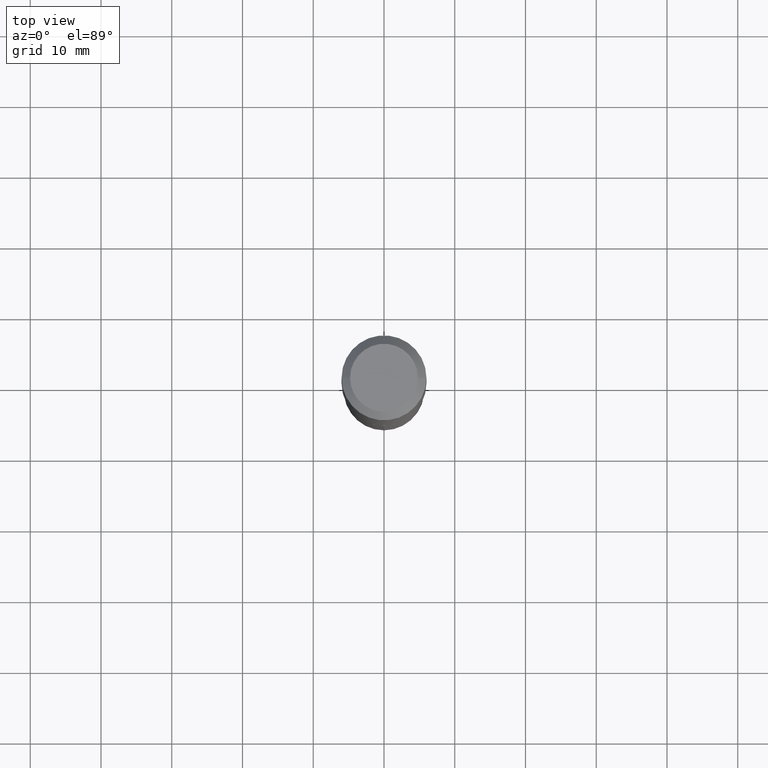
[diagram: clean part render]
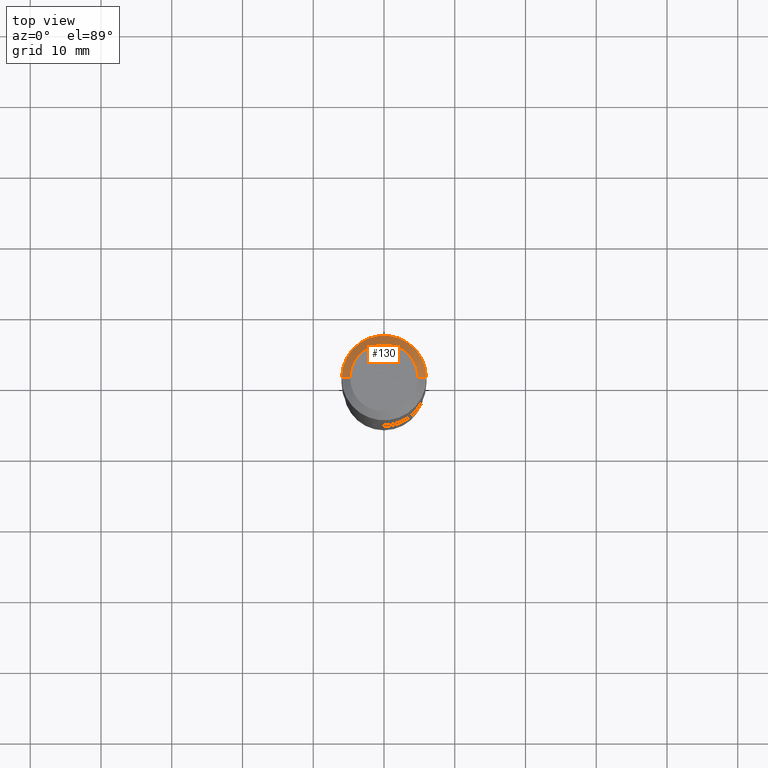
[diagram: same view with one face highlighted and labeled with its STEP entity id]
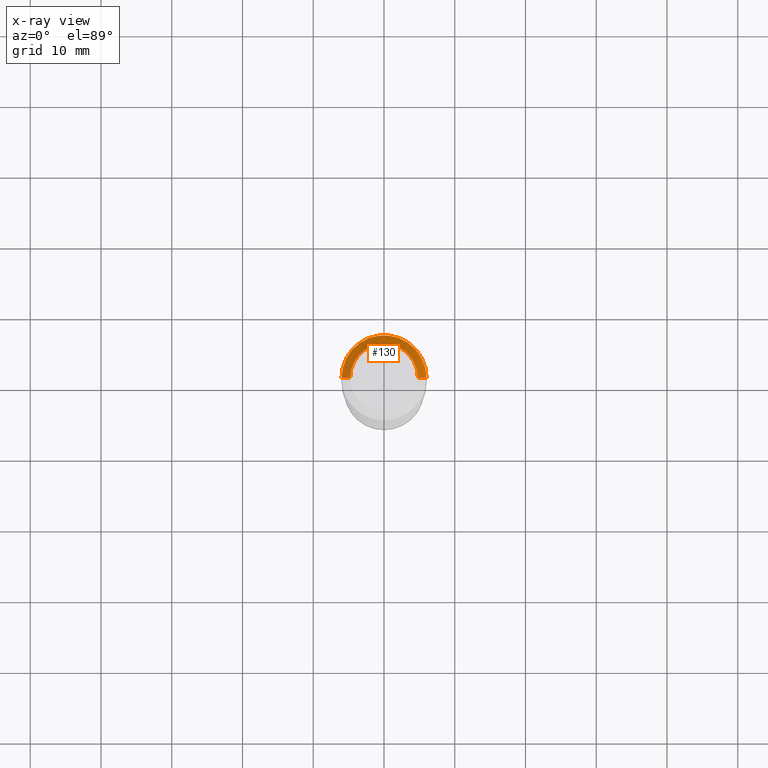
[diagram: x-ray of the same camera — body ghosted, the highlighted face saturated]
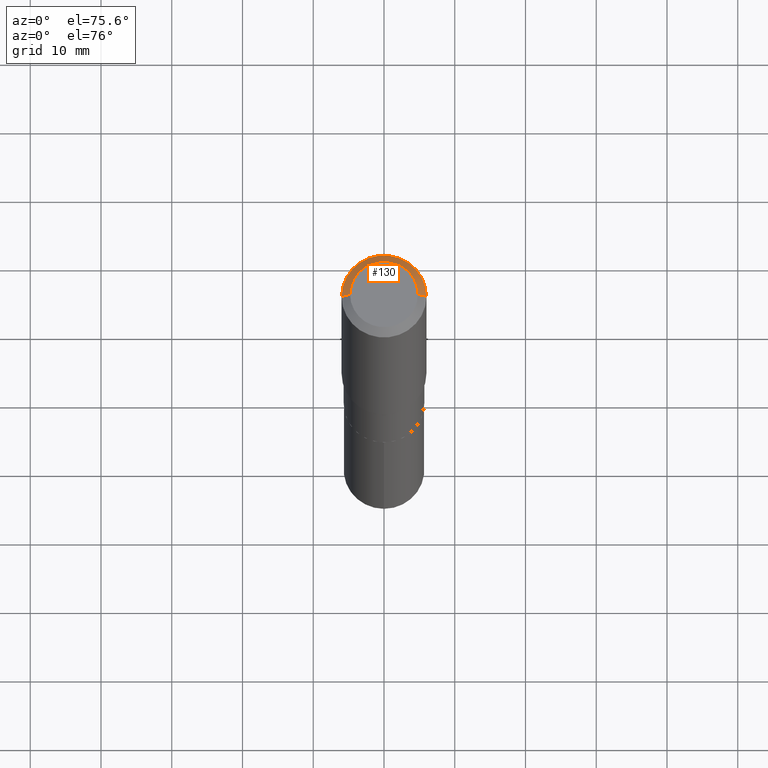
[diagram: same view with one face highlighted and labeled with its STEP entity id]
A machine part, top view. The second image highlights one B-rep face of the part: STEP entity #130.
The next image is the same camera in x-ray: the body ghosted, the highlighted face saturated — about 0% of this face is hidden behind the body in this view.
A second angle (auxiliary view) of the same face is appended — the face is thin or edge-on in the first view.
In plain terms, the highlighted conical surface has half-angle 45 deg.
Its self-contained STEP definition (entity closure, byte-faithful):
#31 = EDGE_LOOP ( 'NONE', ( #56, #318, #359, #356 ) ) ;
#41 = AXIS2_PLACEMENT_3D ( 'NONE', #441, #211, #110 ) ;
#51 = CONICAL_SURFACE ( 'NONE', #322, 0.2361999999999999933, 0.7853981633974452814 ) ;
#55 = CARTESIAN_POINT ( 'NONE',  ( -0.2361999999999999933, -1.496222721037607866E-15, -0.04724000000000028177 ) ) ;
#56 = ORIENTED_EDGE ( 'NONE', *, *, #487, .F. ) ;
#85 = CARTESIAN_POINT ( 'NONE',  ( 0.2361999999999999933, -1.814313362916447440E-15, -0.04724000000000028177 ) ) ;
#102 = LINE ( 'NONE', #473, #390 ) ;
#110 = DIRECTION ( 'NONE',  ( 1.000000000000000000, -6.982962677686266711E-15, 0.000000000000000000 ) ) ;
#130 = ADVANCED_FACE ( 'NONE', ( #256 ), #51, .T. ) ;
#138 = DIRECTION ( 'NONE',  ( 0.7071067811865453523, -7.319954787623248157E-15, -0.7071067811865496822 ) ) ;
#150 = DIRECTION ( 'NONE',  ( -2.445468806185136597E-29, 3.491481338843145583E-15, 1.000000000000000000 ) ) ;
#153 = AXIS2_PLACEMENT_3D ( 'NONE', #298, #150, #300 ) ;
#175 = DIRECTION ( 'NONE',  ( -0.7071067811865453523, 2.468850131082234184E-15, -0.7071067811865496822 ) ) ;
#177 = VERTEX_POINT ( 'NONE', #55 ) ;
#205 = VECTOR ( 'NONE', #175, 39.37007874015748143 ) ;
#211 = DIRECTION ( 'NONE',  ( -2.445468806185136597E-29, 3.491481338843145583E-15, 1.000000000000000000 ) ) ;
#239 = VERTEX_POINT ( 'NONE', #311 ) ;
#245 = VERTEX_POINT ( 'NONE', #85 ) ;
#255 = CARTESIAN_POINT ( 'NONE',  ( -0.1889600000000000168, 1.401969416799070942E-15, 3.855188123706346622E-18 ) ) ;
#256 = FACE_OUTER_BOUND ( 'NONE', #31, .T. ) ;
#280 = DIRECTION ( 'NONE',  ( 2.445468806185136597E-29, -3.491481338843145583E-15, -1.000000000000000000 ) ) ;
#298 = CARTESIAN_POINT ( 'NONE',  ( -9.427742298522546243E-47, 1.346031739168365344E-32, 3.855188123715862256E-18 ) ) ;
#300 = DIRECTION ( 'NONE',  ( 1.000000000000000000, -6.982962677686266711E-15, 4.876185090822587894E-29 ) ) ;
#304 = DIRECTION ( 'NONE',  ( -1.000000000000000000, 6.982962677686266711E-15, 0.000000000000000000 ) ) ;
#311 = CARTESIAN_POINT ( 'NONE',  ( 0.1889600000000000168, -1.540873453589747738E-15, 3.855188123725863225E-18 ) ) ;
#318 = ORIENTED_EDGE ( 'NONE', *, *, #379, .T. ) ;
#322 = AXIS2_PLACEMENT_3D ( 'NONE', #411, #280, #304 ) ;
#329 = LINE ( 'NONE', #369, #205 ) ;
#331 = EDGE_CURVE ( 'NONE', #437, #177, #329, .T. ) ;
#356 = ORIENTED_EDGE ( 'NONE', *, *, #331, .F. ) ;
#359 = ORIENTED_EDGE ( 'NONE', *, *, #361, .T. ) ;
#361 = EDGE_CURVE ( 'NONE', #245, #177, #442, .T. ) ;
#369 = CARTESIAN_POINT ( 'NONE',  ( -0.2361999999999999933, 1.484438206022545019E-15, -0.04724000000000028177 ) ) ;
#379 = EDGE_CURVE ( 'NONE', #239, #245, #102, .T. ) ;
#390 = VECTOR ( 'NONE', #138, 39.37007874015748143 ) ;
#411 = CARTESIAN_POINT ( 'NONE',  ( 1.155239464041865506E-30, -1.649375784469511859E-16, -0.04724000000000028177 ) ) ;
#437 = VERTEX_POINT ( 'NONE', #255 ) ;
#441 = CARTESIAN_POINT ( 'NONE',  ( 1.155239464041865506E-30, -1.649375784469511859E-16, -0.04724000000000028177 ) ) ;
#442 = CIRCLE ( 'NONE', #41, 0.2361999999999999933 ) ;
#467 = CIRCLE ( 'NONE', #153, 0.1889600000000000168 ) ;
#473 = CARTESIAN_POINT ( 'NONE',  ( 0.2361999999999999933, -1.785387205520586782E-15, -0.04724000000000028177 ) ) ;
#487 = EDGE_CURVE ( 'NONE', #239, #437, #467, .T. ) ;